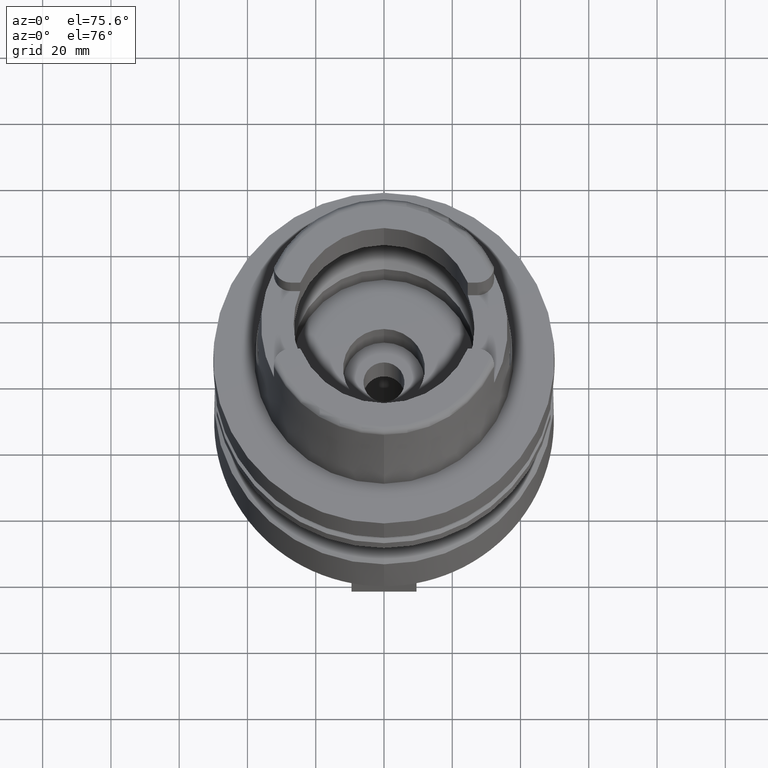
[diagram: clean part render]
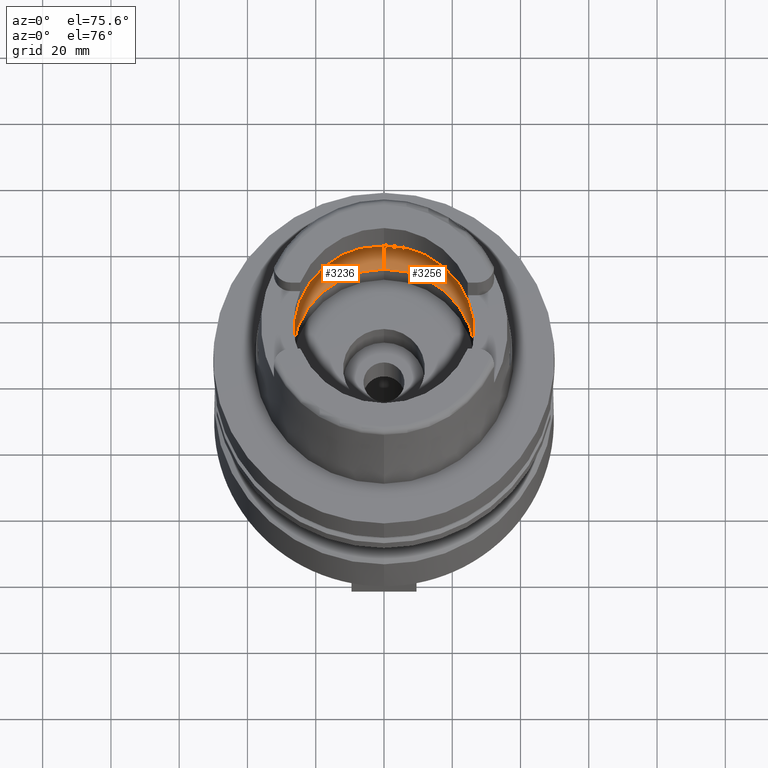
[diagram: same view with one multi-face feature highlighted, each face labeled with its STEP entity id]
A machine part, auxiliary view. The highlighted faces form ONE feature: a constant-radius fillet chain: 2 tangent blend faces with common blend radius 12 mm. The faces share edges in the B-rep.
Their STEP definitions:
[1] entity #3236 (Torus):
#580=CARTESIAN_POINT('',(-3.140918884336E1,-2.390158196044E0,9.496624327026E0));
#624=CARTESIAN_POINT('',(-3.140918884336E1,-2.390158196044E0,9.496624327026E0));
#625=CARTESIAN_POINT('',(-3.142817042433E1,-2.140720287608E0,9.388291533359E0));
#626=CARTESIAN_POINT('',(-3.145842591615E1,-1.626282554712E0,9.205228870666E0));
#627=CARTESIAN_POINT('',(-3.148416875896E1,-8.215746298374E-1,
9.037592635979E0));
#628=CARTESIAN_POINT('',(-3.148971910754E1,-2.740572723320E-1,9.E0));
#629=CARTESIAN_POINT('',(-3.148971910754E1,0.E0,9.E0));
#634=CARTESIAN_POINT('',(-3.148971910754E1,0.E0,9.E0));
#635=CARTESIAN_POINT('',(-3.148971910754E1,2.740565459395E-1,9.E0));
#636=CARTESIAN_POINT('',(-3.148416886187E1,8.215731729151E-1,9.037591997483E0));
#637=CARTESIAN_POINT('',(-3.145842545026E1,1.626293921866E0,9.205231818757E0));
#638=CARTESIAN_POINT('',(-3.142817007011E1,2.140724942431E0,9.388293554984E0));
#639=CARTESIAN_POINT('',(-3.140918884336E1,2.390158196044E0,9.496624327026E0));
#644=CARTESIAN_POINT('',(0.E0,1.340946904995E-14,9.496624327026E0));
#645=DIRECTION('',(0.E0,0.E0,-1.E0));
#646=DIRECTION('',(-9.971171061384E-1,7.587803796965E-2,0.E0));
#647=AXIS2_PLACEMENT_3D('',#644,#645,#646);
#652=CARTESIAN_POINT('',(0.E0,1.340946904995E-14,4.993178413033E-2));
#653=DIRECTION('',(0.E0,0.E0,1.E0));
#654=DIRECTION('',(0.E0,1.E0,0.E0));
#655=AXIS2_PLACEMENT_3D('',#652,#653,#654);
#660=CARTESIAN_POINT('',(0.E0,-1.95E1,9.496624327026E0));
#661=DIRECTION('',(-1.E0,0.E0,0.E0));
#662=DIRECTION('',(0.E0,-6.166666666667E-1,-7.872243785746E-1));
#663=AXIS2_PLACEMENT_3D('',#660,#661,#662);
#668=CARTESIAN_POINT('',(0.E0,1.340946904995E-14,9.496624327026E0));
#669=DIRECTION('',(0.E0,0.E0,-1.E0));
#670=DIRECTION('',(0.E0,-1.E0,0.E0));
#671=AXIS2_PLACEMENT_3D('',#668,#669,#670);
#702=CARTESIAN_POINT('',(0.E0,1.95E1,9.496624327026E0));
#703=DIRECTION('',(1.E0,0.E0,0.E0));
#704=DIRECTION('',(0.E0,6.166666666667E-1,-7.872243785746E-1));
#705=AXIS2_PLACEMENT_3D('',#702,#703,#704);
#2549=VERTEX_POINT('',#580);
#2550=CARTESIAN_POINT('',(0.E0,-3.15E1,9.496624327026E0));
#2551=VERTEX_POINT('',#2550);
#2552=CARTESIAN_POINT('',(0.E0,3.15E1,9.496624327026E0));
#2553=VERTEX_POINT('',#2552);
#2554=CARTESIAN_POINT('',(-3.140918884336E1,2.390158196044E0,9.496624327026E0));
#2555=VERTEX_POINT('',#2554);
#2559=CARTESIAN_POINT('',(-3.148971910754E1,0.E0,9.E0));
#2560=VERTEX_POINT('',#2559);
#2562=CARTESIAN_POINT('',(0.E0,-2.69E1,4.993178413033E-2));
#2563=VERTEX_POINT('',#2562);
#2564=CARTESIAN_POINT('',(0.E0,2.69E1,4.993178413033E-2));
#2565=VERTEX_POINT('',#2564);
#3219=CARTESIAN_POINT('',(0.E0,1.340946904995E-14,9.496624327026E0));
#3220=DIRECTION('',(0.E0,0.E0,-1.E0));
#3221=DIRECTION('',(0.E0,-1.E0,0.E0));
#3222=AXIS2_PLACEMENT_3D('',#3219,#3220,#3221);
#3223=TOROIDAL_SURFACE('',#3222,1.95E1,1.2E1);
#3224=ORIENTED_EDGE('',*,*,#3200,.T.);
#3225=ORIENTED_EDGE('',*,*,#3211,.T.);
#3226=ORIENTED_EDGE('',*,*,#3182,.T.);
#3228=ORIENTED_EDGE('',*,*,#3227,.F.);
#3230=ORIENTED_EDGE('',*,*,#3229,.T.);
#3232=ORIENTED_EDGE('',*,*,#3231,.T.);
#3233=ORIENTED_EDGE('',*,*,#3175,.T.);
#3234=EDGE_LOOP('',(#3224,#3225,#3226,#3228,#3230,#3232,#3233));
#3235=FACE_OUTER_BOUND('',#3234,.F.);
#630=B_SPLINE_CURVE_WITH_KNOTS('',3,(#624,#625,#626,#627,#628,#629),
.UNSPECIFIED.,.F.,.F.,(4,1,1,4),(0.E0,3.333333333333E-1,6.666666666667E-1,1.E0),
.UNSPECIFIED.);
#640=B_SPLINE_CURVE_WITH_KNOTS('',3,(#634,#635,#636,#637,#638,#639),
.UNSPECIFIED.,.F.,.F.,(4,1,1,4),(0.E0,3.333333333333E-1,6.666666666667E-1,1.E0),
.UNSPECIFIED.);
#648=CIRCLE('',#647,3.15E1);
#656=CIRCLE('',#655,2.69E1);
#664=CIRCLE('',#663,1.2E1);
#672=CIRCLE('',#671,3.15E1);
#706=CIRCLE('',#705,1.2E1);
#3175=EDGE_CURVE('',#2551,#2549,#672,.T.);
#3182=EDGE_CURVE('',#2555,#2553,#648,.T.);
#3200=EDGE_CURVE('',#2549,#2560,#630,.T.);
#3211=EDGE_CURVE('',#2560,#2555,#640,.T.);
#3227=EDGE_CURVE('',#2565,#2553,#706,.T.);
#3229=EDGE_CURVE('',#2565,#2563,#656,.T.);
#3231=EDGE_CURVE('',#2563,#2551,#664,.T.);
#3236=ADVANCED_FACE('',(#3235),#3223,.F.);
[2] entity #3256 (Torus):
#660=CARTESIAN_POINT('',(0.E0,-1.95E1,9.496624327026E0));
#661=DIRECTION('',(-1.E0,0.E0,0.E0));
#662=DIRECTION('',(0.E0,-6.166666666667E-1,-7.872243785746E-1));
#663=AXIS2_PLACEMENT_3D('',#660,#661,#662);
#676=CARTESIAN_POINT('',(3.148971910754E1,0.E0,9.E0));
#677=CARTESIAN_POINT('',(3.148971910754E1,-2.740577972479E-1,9.E0));
#678=CARTESIAN_POINT('',(3.148416873908E1,-8.215758563206E-1,9.037592770478E0));
#679=CARTESIAN_POINT('',(3.145842584810E1,-1.626284014638E0,9.205229300853E0));
#680=CARTESIAN_POINT('',(3.142817037895E1,-2.140720883960E0,9.388291792359E0));
#681=CARTESIAN_POINT('',(3.140918884336E1,-2.390158196044E0,9.496624327026E0));
#686=CARTESIAN_POINT('',(0.E0,1.340946904995E-14,9.496624327026E0));
#687=DIRECTION('',(0.E0,0.E0,-1.E0));
#688=DIRECTION('',(9.971171061384E-1,-7.587803796965E-2,0.E0));
#689=AXIS2_PLACEMENT_3D('',#686,#687,#688);
#694=CARTESIAN_POINT('',(0.E0,1.340946904995E-14,4.993178413033E-2));
#695=DIRECTION('',(0.E0,0.E0,1.E0));
#696=DIRECTION('',(0.E0,-1.E0,0.E0));
#697=AXIS2_PLACEMENT_3D('',#694,#695,#696);
#702=CARTESIAN_POINT('',(0.E0,1.95E1,9.496624327026E0));
#703=DIRECTION('',(1.E0,0.E0,0.E0));
#704=DIRECTION('',(0.E0,6.166666666667E-1,-7.872243785746E-1));
#705=AXIS2_PLACEMENT_3D('',#702,#703,#704);
#710=CARTESIAN_POINT('',(0.E0,1.340946904995E-14,9.496624327026E0));
#711=DIRECTION('',(0.E0,0.E0,-1.E0));
#712=DIRECTION('',(0.E0,1.E0,0.E0));
#713=AXIS2_PLACEMENT_3D('',#710,#711,#712);
#718=CARTESIAN_POINT('',(3.140918884336E1,2.390158196044E0,9.496624327026E0));
#719=CARTESIAN_POINT('',(3.142817011594E1,2.140724340245E0,9.388293293450E0));
#720=CARTESIAN_POINT('',(3.145842551910E1,1.626292447614E0,9.205231383659E0));
#721=CARTESIAN_POINT('',(3.148416888237E1,8.215719155563E-1,9.037591858779E0));
#722=CARTESIAN_POINT('',(3.148971910754E1,2.740560076334E-1,9.E0));
#723=CARTESIAN_POINT('',(3.148971910754E1,0.E0,9.E0));
#735=CARTESIAN_POINT('',(3.140918884336E1,-2.390158196044E0,9.496624327026E0));
#766=CARTESIAN_POINT('',(3.140918884336E1,2.390158196044E0,9.496624327026E0));
#2550=CARTESIAN_POINT('',(0.E0,-3.15E1,9.496624327026E0));
#2551=VERTEX_POINT('',#2550);
#2552=CARTESIAN_POINT('',(0.E0,3.15E1,9.496624327026E0));
#2553=VERTEX_POINT('',#2552);
#2556=VERTEX_POINT('',#735);
#2558=VERTEX_POINT('',#676);
#2561=VERTEX_POINT('',#766);
#2562=CARTESIAN_POINT('',(0.E0,-2.69E1,4.993178413033E-2));
#2563=VERTEX_POINT('',#2562);
#2564=CARTESIAN_POINT('',(0.E0,2.69E1,4.993178413033E-2));
#2565=VERTEX_POINT('',#2564);
#3237=CARTESIAN_POINT('',(0.E0,1.340946904995E-14,9.496624327026E0));
#3238=DIRECTION('',(0.E0,0.E0,-1.E0));
#3239=DIRECTION('',(0.E0,-1.E0,0.E0));
#3240=AXIS2_PLACEMENT_3D('',#3237,#3238,#3239);
#3241=TOROIDAL_SURFACE('',#3240,1.95E1,1.2E1);
#3243=ORIENTED_EDGE('',*,*,#3242,.T.);
#3245=ORIENTED_EDGE('',*,*,#3244,.T.);
#3246=ORIENTED_EDGE('',*,*,#3231,.F.);
#3248=ORIENTED_EDGE('',*,*,#3247,.T.);
#3249=ORIENTED_EDGE('',*,*,#3227,.T.);
#3251=ORIENTED_EDGE('',*,*,#3250,.T.);
#3253=ORIENTED_EDGE('',*,*,#3252,.T.);
#3254=EDGE_LOOP('',(#3243,#3245,#3246,#3248,#3249,#3251,#3253));
#3255=FACE_OUTER_BOUND('',#3254,.F.);
#664=CIRCLE('',#663,1.2E1);
#682=B_SPLINE_CURVE_WITH_KNOTS('',3,(#676,#677,#678,#679,#680,#681),
.UNSPECIFIED.,.F.,.F.,(4,1,1,4),(0.E0,3.333333333333E-1,6.666666666667E-1,1.E0),
.UNSPECIFIED.);
#690=CIRCLE('',#689,3.15E1);
#698=CIRCLE('',#697,2.69E1);
#706=CIRCLE('',#705,1.2E1);
#714=CIRCLE('',#713,3.15E1);
#724=B_SPLINE_CURVE_WITH_KNOTS('',3,(#718,#719,#720,#721,#722,#723),
.UNSPECIFIED.,.F.,.F.,(4,1,1,4),(0.E0,3.333333333333E-1,6.666666666667E-1,1.E0),
.UNSPECIFIED.);
#3227=EDGE_CURVE('',#2565,#2553,#706,.T.);
#3231=EDGE_CURVE('',#2563,#2551,#664,.T.);
#3242=EDGE_CURVE('',#2558,#2556,#682,.T.);
#3244=EDGE_CURVE('',#2556,#2551,#690,.T.);
#3247=EDGE_CURVE('',#2563,#2565,#698,.T.);
#3250=EDGE_CURVE('',#2553,#2561,#714,.T.);
#3252=EDGE_CURVE('',#2561,#2558,#724,.T.);
#3256=ADVANCED_FACE('',(#3255),#3241,.F.);